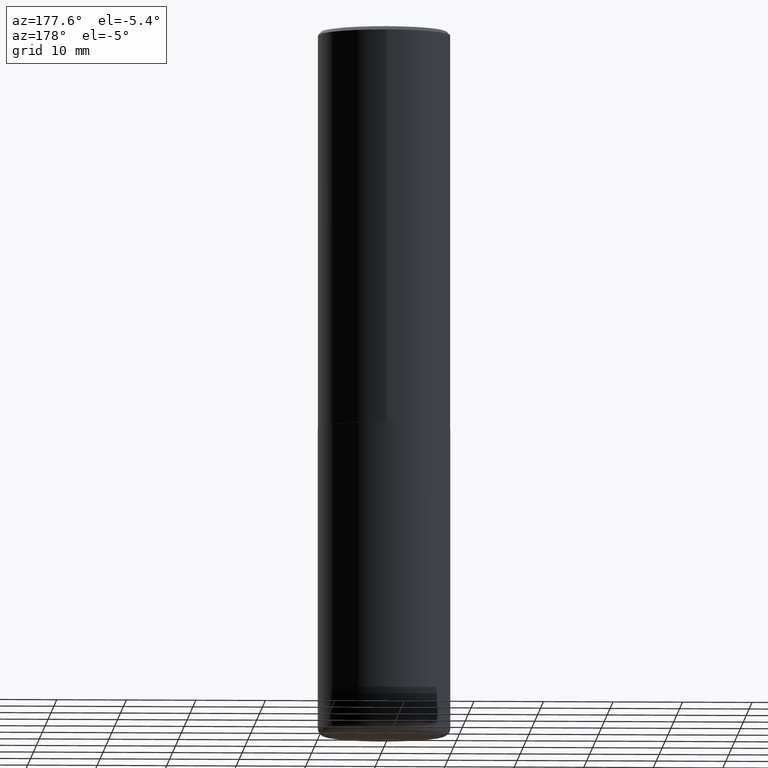
[diagram: clean part render]
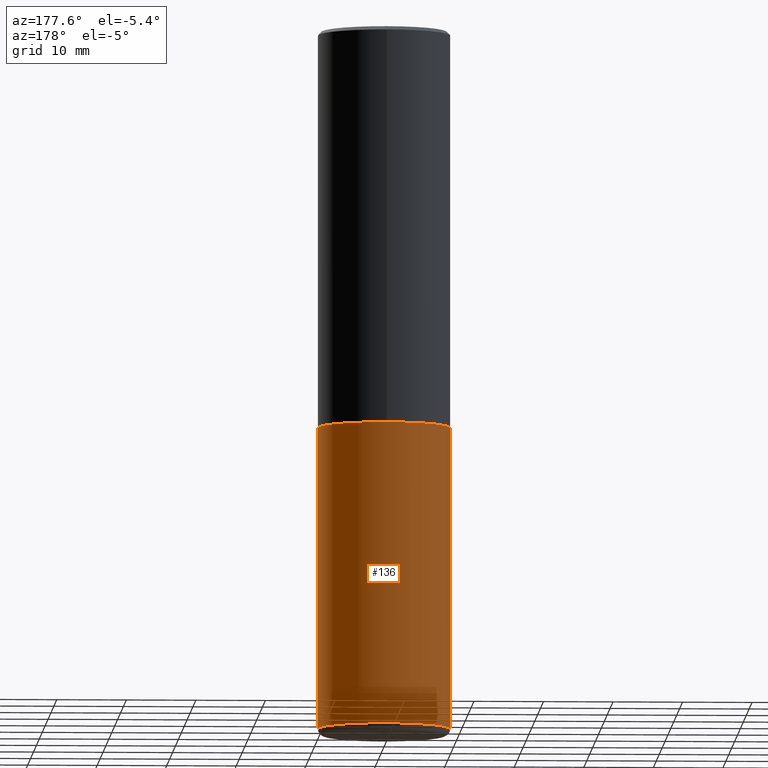
[diagram: same view with one face highlighted and labeled with its STEP entity id]
A machine part, auxiliary view. The second image highlights one B-rep face of the part: STEP entity #136.
In plain terms, the highlighted cylindrical surface (partial cylindrical patch) has radius 9.525 mm, axis along (-0, 0, 1).
Its self-contained STEP definition (entity closure, byte-faithful):
#1 = EDGE_CURVE ( 'NONE', #32, #392, #309, .T. ) ;
#4 = CARTESIAN_POINT ( 'NONE',  ( 9.684056472493141327E-29, -1.382626610181885731E-14, -3.960000000000000409 ) ) ;
#10 = ORIENTED_EDGE ( 'NONE', *, *, #1, .T. ) ;
#15 = VECTOR ( 'NONE', #237, 39.37007874015748143 ) ;
#30 = AXIS2_PLACEMENT_3D ( 'NONE', #413, #184, #155 ) ;
#32 = VERTEX_POINT ( 'NONE', #393 ) ;
#35 = ORIENTED_EDGE ( 'NONE', *, *, #397, .T. ) ;
#42 = DIRECTION ( 'NONE',  ( 1.000000000000000000, -6.982962677686266711E-15, 4.876176775795935793E-29 ) ) ;
#53 = CIRCLE ( 'NONE', #30, 0.3750000000000000555 ) ;
#76 = AXIS2_PLACEMENT_3D ( 'NONE', #4, #227, #295 ) ;
#97 = DIRECTION ( 'NONE',  ( -2.445468806185136597E-29, 3.491481338843145583E-15, 1.000000000000000000 ) ) ;
#134 = ORIENTED_EDGE ( 'NONE', *, *, #173, .F. ) ;
#136 = ADVANCED_FACE ( 'NONE', ( #260 ), #324, .T. ) ;
#152 = CARTESIAN_POINT ( 'NONE',  ( -0.3750000000000000555, -8.176514298007592183E-15, -2.249999999999999556 ) ) ;
#155 = DIRECTION ( 'NONE',  ( 1.000000000000000000, -6.982962677686266711E-15, 0.000000000000000000 ) ) ;
#157 = ORIENTED_EDGE ( 'NONE', *, *, #386, .F. ) ;
#173 = EDGE_CURVE ( 'NONE', #32, #282, #307, .T. ) ;
#184 = DIRECTION ( 'NONE',  ( -2.445468806185136597E-29, 3.491481338843145583E-15, 1.000000000000000000 ) ) ;
#188 = LINE ( 'NONE', #416, #362 ) ;
#209 = DIRECTION ( 'NONE',  ( -2.445468806185136877E-29, 3.491481338843145188E-15, 1.000000000000000000 ) ) ;
#219 = CARTESIAN_POINT ( 'NONE',  ( -0.3750000000000000555, -1.116173084271848161E-14, -3.960000000000000409 ) ) ;
#221 = EDGE_LOOP ( 'NONE', ( #10, #35, #157, #134 ) ) ;
#227 = DIRECTION ( 'NONE',  ( -2.445468806185136597E-29, 3.491481338843145583E-15, 1.000000000000000000 ) ) ;
#228 = AXIS2_PLACEMENT_3D ( 'NONE', #293, #97, #42 ) ;
#237 = DIRECTION ( 'NONE',  ( -2.445468806185136877E-29, 3.491481338843145188E-15, 1.000000000000000000 ) ) ;
#260 = FACE_OUTER_BOUND ( 'NONE', #221, .T. ) ;
#282 = VERTEX_POINT ( 'NONE', #335 ) ;
#293 = CARTESIAN_POINT ( 'NONE',  ( 0.000000000000000000, 0.000000000000000000, 0.000000000000000000 ) ) ;
#295 = DIRECTION ( 'NONE',  ( 1.000000000000000000, -6.982962677686263555E-15, 0.000000000000000000 ) ) ;
#307 = LINE ( 'NONE', #369, #15 ) ;
#309 = CIRCLE ( 'NONE', #76, 0.3749999999999999445 ) ;
#324 = CYLINDRICAL_SURFACE ( 'NONE', #228, 0.3749999999999999445 ) ;
#335 = CARTESIAN_POINT ( 'NONE',  ( 0.3750000000000000555, -1.047444401652942689E-14, -2.249999999999999556 ) ) ;
#354 = VERTEX_POINT ( 'NONE', #152 ) ;
#362 = VECTOR ( 'NONE', #209, 39.37007874015748143 ) ;
#369 = CARTESIAN_POINT ( 'NONE',  ( 0.3749999999999999445, -2.618611004132349622E-15, 1.828566290923475642E-29 ) ) ;
#386 = EDGE_CURVE ( 'NONE', #282, #354, #53, .T. ) ;
#392 = VERTEX_POINT ( 'NONE', #219 ) ;
#393 = CARTESIAN_POINT ( 'NONE',  ( 0.3750000000000000555, -1.644487710595120733E-14, -3.960000000000000409 ) ) ;
#397 = EDGE_CURVE ( 'NONE', #392, #354, #188, .T. ) ;
#413 = CARTESIAN_POINT ( 'NONE',  ( 5.502304813916556222E-29, -7.855833012397076871E-15, -2.249999999999999556 ) ) ;
#416 = CARTESIAN_POINT ( 'NONE',  ( -0.3749999999999999445, 2.664535259100375303E-15, -1.844600658845589318E-29 ) ) ;